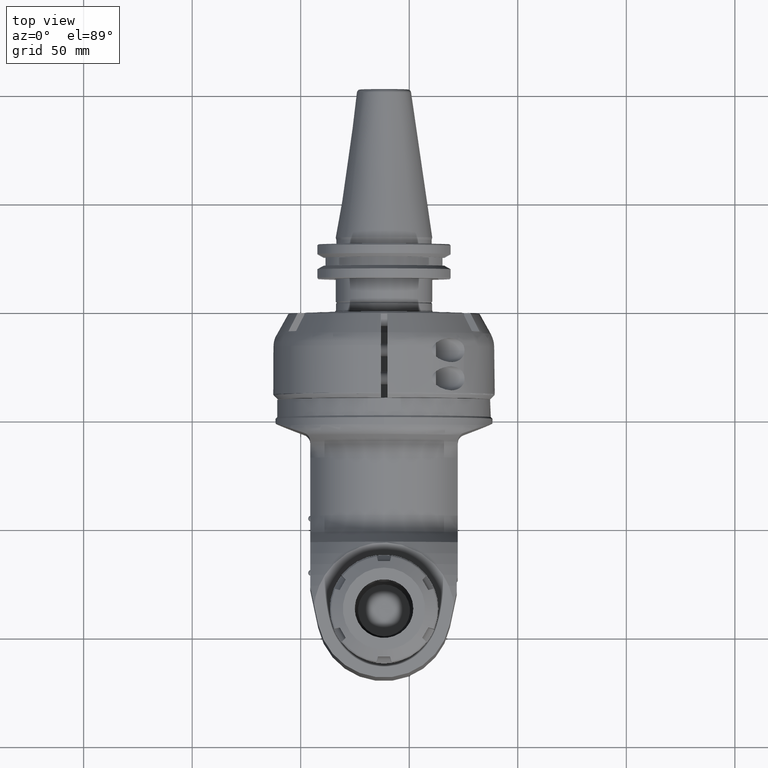
[diagram: clean part render]
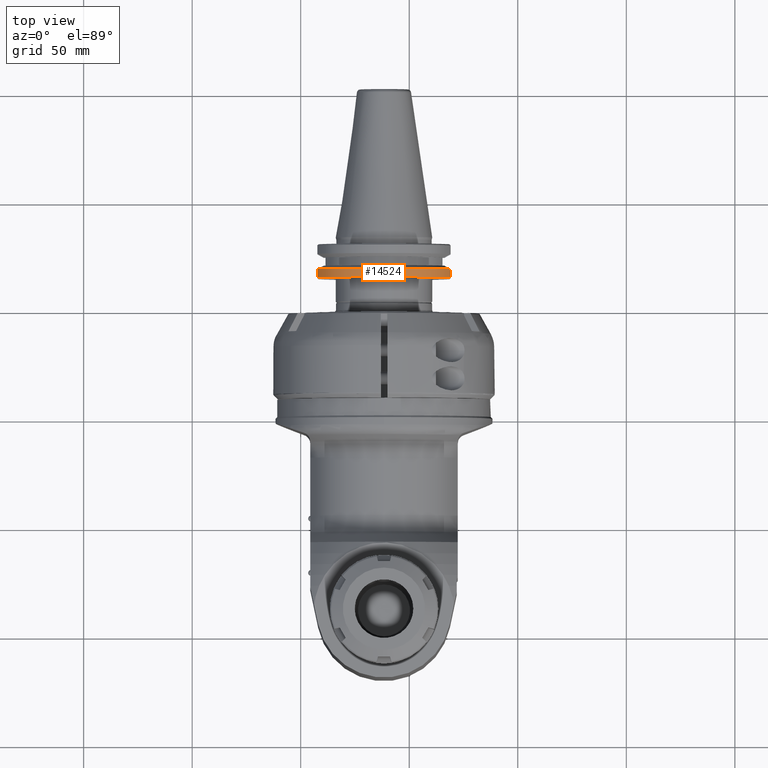
[diagram: same view with one face highlighted and labeled with its STEP entity id]
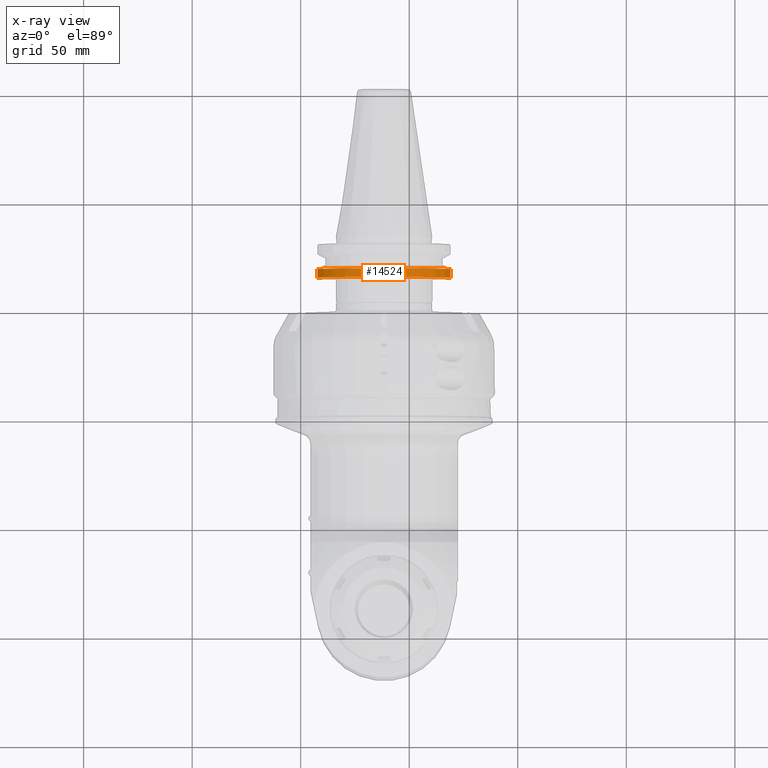
[diagram: x-ray of the same camera — body ghosted, the highlighted face saturated]
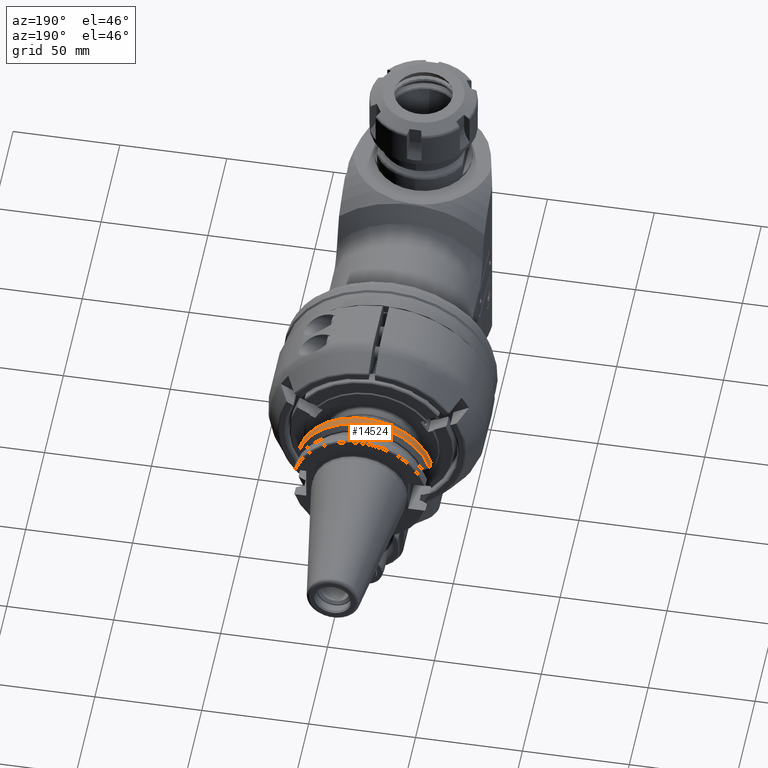
[diagram: same view with one face highlighted and labeled with its STEP entity id]
A machine part, top view. The second image highlights one B-rep face of the part: STEP entity #14524.
The next image is the same camera in x-ray: the body ghosted, the highlighted face saturated — about 0% of this face is hidden behind the body in this view.
A second angle (auxiliary view) of the same face is appended — the face is thin or edge-on in the first view.
In plain terms, the highlighted cylindrical surface (partial cylindrical patch) has radius 31.75 mm, axis along (0, -1, 0).
Its self-contained STEP definition (entity closure, byte-faithful):
#261=CYLINDRICAL_SURFACE('',#16167,31.75);
#1562=LINE('',#32821,#2449);
#1570=LINE('',#32907,#2457);
#2449=VECTOR('',#20128,3.88932990993402);
#2457=VECTOR('',#20144,3.88932990948002);
#3716=FACE_OUTER_BOUND('',#4691,.T.);
#4691=EDGE_LOOP('',(#13331,#13332,#13333,#13334));
#5491=CIRCLE('',#16166,31.75);
#5492=CIRCLE('',#16168,31.75);
#7129=VERTEX_POINT('',#32800);
#7130=VERTEX_POINT('',#32820);
#7141=VERTEX_POINT('',#32899);
#7142=VERTEX_POINT('',#32906);
#9210=EDGE_CURVE('',#7130,#7129,#1562,.T.);
#9226=EDGE_CURVE('',#7142,#7141,#1570,.T.);
#9228=EDGE_CURVE('',#7142,#7129,#5491,.T.);
#9229=EDGE_CURVE('',#7130,#7141,#5492,.T.);
#13331=ORIENTED_EDGE('',*,*,#9229,.F.);
#13332=ORIENTED_EDGE('',*,*,#9210,.T.);
#13333=ORIENTED_EDGE('',*,*,#9228,.F.);
#13334=ORIENTED_EDGE('',*,*,#9226,.T.);
#14524=ADVANCED_FACE('',(#3716),#261,.T.);
#16166=AXIS2_PLACEMENT_3D('',#32928,#20147,#20148);
#16167=AXIS2_PLACEMENT_3D('',#32929,#20149,#20150);
#16168=AXIS2_PLACEMENT_3D('',#32930,#20151,#20152);
#20128=DIRECTION('',(-2.55212608832199E-8,0.999999999999995,9.55706743016595E-8));
#20144=DIRECTION('',(-2.55237272048599E-8,-0.999999999999995,-9.55799051954895E-8));
#20147=DIRECTION('center_axis',(0.,1.,0.));
#20148=DIRECTION('ref_axis',(-0.96614491666623,0.,0.258000000000008));
#20149=DIRECTION('center_axis',(0.,-1.,0.));
#20150=DIRECTION('ref_axis',(1.,0.,0.));
#20151=DIRECTION('center_axis',(0.,-1.,0.));
#20152=DIRECTION('ref_axis',(0.96614491666623,0.,0.258000000000008));
#32800=CARTESIAN_POINT('',(30.6751009774094,59.8393332126178,8.19150055406647));
#32820=CARTESIAN_POINT('',(30.67510110415,55.95,8.1915));
#32821=CARTESIAN_POINT('',(30.67510110415,55.95,8.1915));
#32899=CARTESIAN_POINT('',(-30.67510110415,55.95,8.1915));
#32906=CARTESIAN_POINT('',(-30.6751009778011,59.839333212037,8.19150055396293));
#32907=CARTESIAN_POINT('',(-30.67510100488,59.83932990948,8.191500371742));
#32928=CARTESIAN_POINT('Origin',(0.,59.83933323092,0.));
#32929=CARTESIAN_POINT('Origin',(0.,63.3875,0.));
#32930=CARTESIAN_POINT('Origin',(0.,55.95,0.));